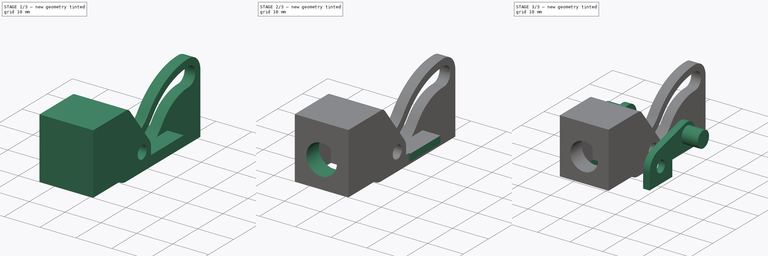
[diagram: build sequence overview — one tinted view per stage of 3, left to right]
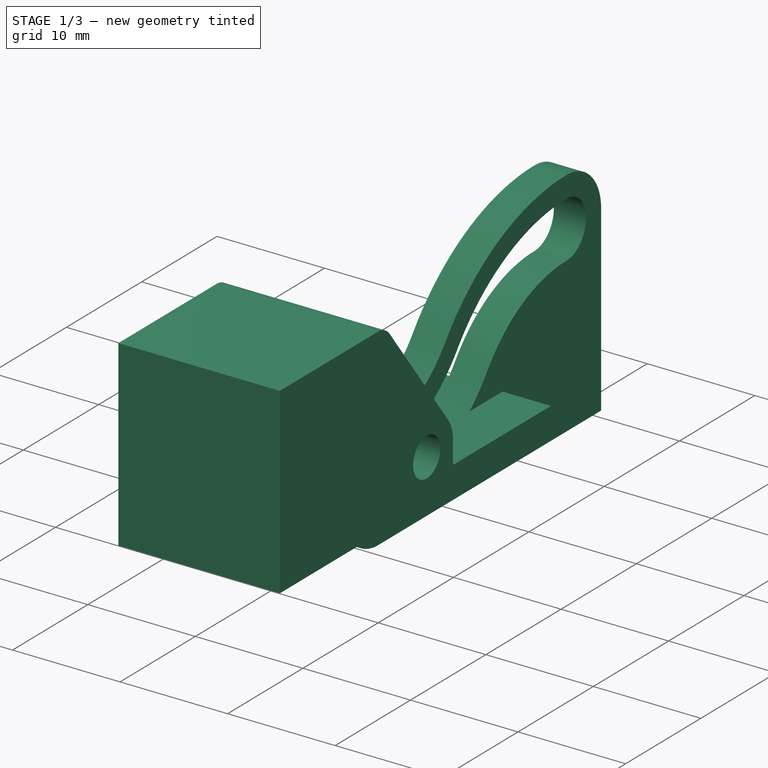
[diagram: stage 1 of 3 — iso view after this stage's code; geometry added in this stage tinted green]
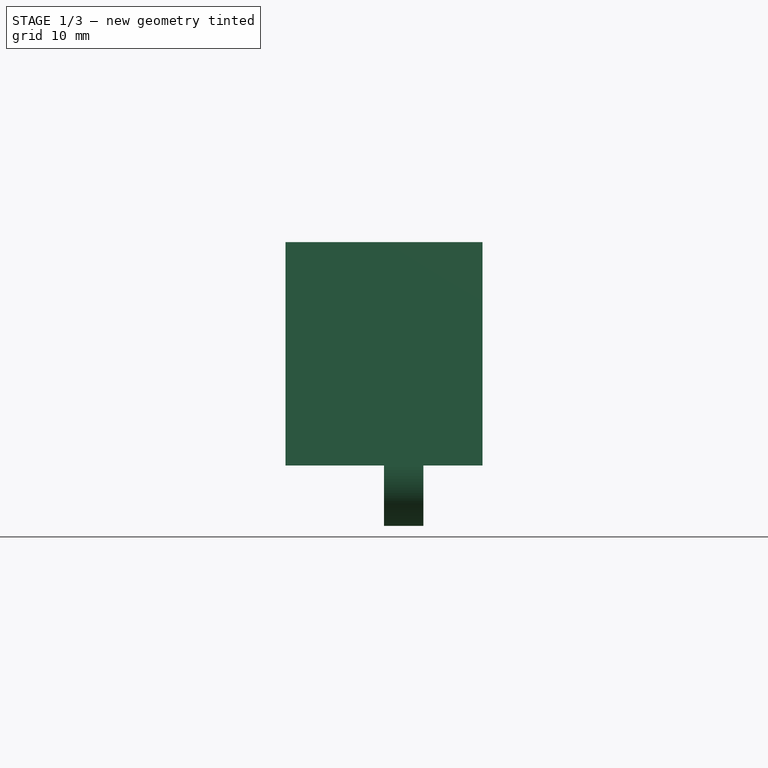
[diagram: stage 1 of 3 — front view after this stage's code; geometry added in this stage tinted green]
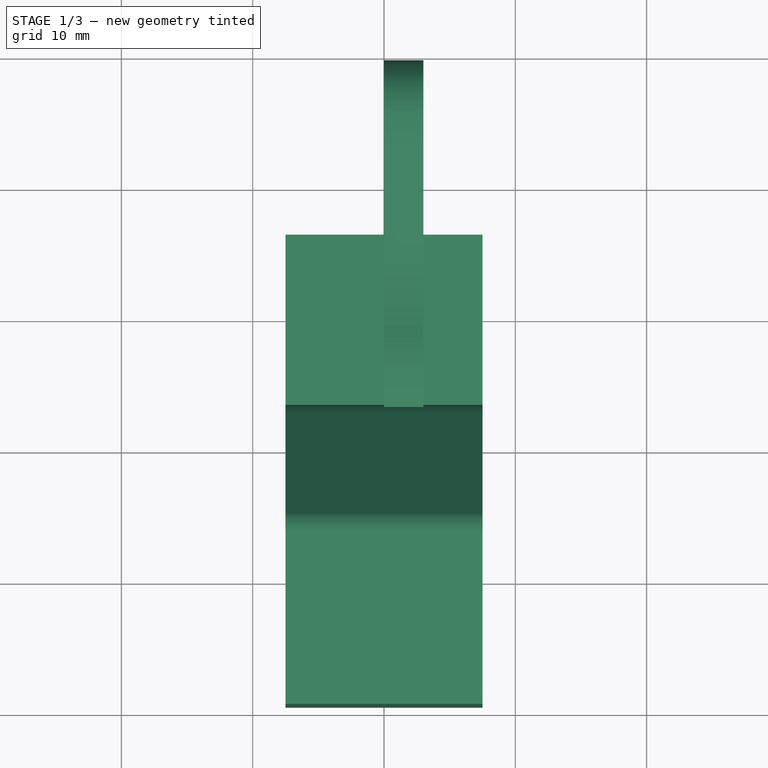
[diagram: stage 1 of 3 — top view after this stage's code; geometry added in this stage tinted green]
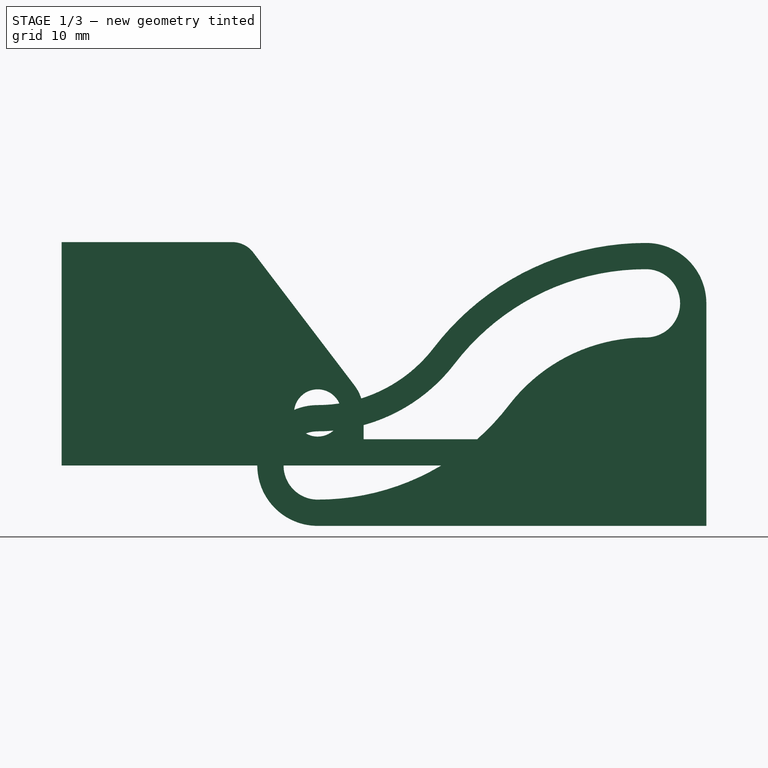
[diagram: stage 1 of 3 — right view after this stage's code; geometry added in this stage tinted green]
FCSTD DOCUMENT  (FreeCAD 0.19R24366 (Git))
Label: Обечайка_Автомат
License: All rights reserved
LicenseURL: http://en.wikipedia.org/wiki/All_rights_reserved
objects: Sketcher::SketchObject×7, PartDesign::Pad×5, PartDesign::Body×3, PartDesign::Pocket×2, PartDesign::Mirrored×1
note: 25 computed .brp shape members not serialized (recipe doc carries the construction recipe); baked Part::Feature solids carry a one-line shape summary decoded from their .brp

FEATURE [Sketcher::SketchObject] Sketch
  FullyConstrained = true
  MapMode = 5
  Placement = pos=(0,0,0) rot=(0.57735,0.57735,0.57735;2.0944rad)
  Support = -> [YZ_Plane]
  sketch-geometry (24):
    g0: LineSegment StartX=-3.5 StartY=0 StartZ=0 EndX=16.5 EndY=0 EndZ=0
    g1: LineSegment StartX=16.5 StartY=0 StartZ=0 EndX=16.5 EndY=2 EndZ=0
    g2: LineSegment StartX=16.5 StartY=2 StartZ=0 EndX=3.5 EndY=2 EndZ=0
    g3: LineSegment StartX=3.5 StartY=2 StartZ=0 EndX=3.5 EndY=4 EndZ=0
    g4: Circle CenterX=0 CenterY=4 CenterZ=0 NormalX=0 NormalY=0 NormalZ=1 AngleXU=0 Radius=1.8
    g5: LineSegment StartX=0 StartY=4 StartZ=0 EndX=0 EndY=7.5 EndZ=0
    g6: LineSegment StartX=0 StartY=4 StartZ=0 EndX=3.5 EndY=4 EndZ=0
    g7: LineSegment StartX=-6.5 StartY=0 StartZ=0 EndX=-14.5 EndY=0 EndZ=0
    g8: LineSegment StartX=-14.5 StartY=0 StartZ=0 EndX=-14.5 EndY=15.0111 EndZ=0
    g9: LineSegment StartX=-14.5 StartY=15.0111 StartZ=0 EndX=-6.5 EndY=15.0111 EndZ=0
    g10: LineSegment StartX=-6.5 StartY=15.0111 StartZ=0 EndX=-6.5 EndY=0 EndZ=0
    g11: ArcOfCircle CenterX=0 CenterY=4 CenterZ=0 NormalX=0 NormalY=0 NormalZ=1 AngleXU=0 Radius=3.5 StartAngle=6.28318 EndAngle=6.93403
    g12: LineSegment StartX=-3.5 StartY=0 StartZ=0 EndX=-19.5 EndY=0 EndZ=0
    g13: LineSegment StartX=-19.5 StartY=0 StartZ=0 EndX=-19.5 EndY=17.0111 EndZ=0
    g14: LineSegment StartX=-19.5 StartY=17.0111 StartZ=0 EndX=-6.49998 EndY=17.0111 EndZ=0
    g15: ArcOfCircle CenterX=-6.5 CenterY=15.0111 CenterZ=0 NormalX=0 NormalY=0 NormalZ=1 AngleXU=0 Radius=2 StartAngle=0.650845 EndAngle=1.57079
    g16: LineSegment StartX=2.78451 StartY=6.1205 StartZ=0 EndX=-4.90886 EndY=16.2228 EndZ=0
    g17: LineSegment StartX=0 StartY=-4e-16 StartZ=0 EndX=6.5 EndY=3.75278 EndZ=0
    g18: LineSegment StartX=6.5 StartY=3.75278 StartZ=0 EndX=6.5 EndY=11.2583 EndZ=0
    g19: LineSegment StartX=6.5 StartY=11.2583 StartZ=0 EndX=9e-16 EndY=15.0111 EndZ=0
    g20: LineSegment StartX=6e-16 StartY=15.0111 StartZ=0 EndX=-6.5 EndY=11.2583 EndZ=0
    g21: LineSegment StartX=-6.5 StartY=11.2583 StartZ=0 EndX=-6.5 EndY=3.75278 EndZ=0
    g22: LineSegment StartX=-6.5 StartY=3.75278 StartZ=0 EndX=0 EndY=-4e-16 EndZ=0
    g23: Circle CenterX=0 CenterY=7.50555 CenterZ=0 NormalX=0 NormalY=0 NormalZ=1 AngleXU=0 Radius=7.50555
  constraints (67):
    c: PointOnObject(g0,g-1)
    c: PointOnObject(g0,g-1)
    c: Coincident(g0,g1)
    c: Vertical(g1)
    c: Coincident(g1,g2)
    c: Horizontal(g2)
    c: Coincident(g2,g3)
    c: Vertical(g3)
    c: PointOnObject(g4,g-2)
    c: DistanceY(g4) = 4
    c: Diameter(g4) = 3.6
    c: Distance(g1) = 2
    c: Distance(g0) = 20
    c: Coincident(g5,g4)
    c: Vertical(g5)
    c: Coincident(g6,g4)
    c: PointOnObject(g6,g3)
    c: Horizontal(g6)
    c: Equal(g6,g5)
    c: Coincident(g7,g8)
    c: Coincident(g8,g9)
    c: Coincident(g9,g10)
    c: Coincident(g10,g7)
    c: Horizontal(g7)
    c: Horizontal(g9)
    c: Vertical(g8)
    c: Vertical(g10)
    c: PointOnObject(g7,g-1)
    c: Coincident(g11,g4)
    c: Coincident(g11,g3)
    c: DistanceX(g0) = -3.5  'C31'
    c: Coincident(g12,g0)
    c: PointOnObject(g12,g-1)
    c: Coincident(g13,g12)
    c: Vertical(g13)
    c: Coincident(g14,g13)
    c: Horizontal(g14)
    c: Coincident(g15,g9)
    c: Coincident(g15,g14)
    c: Coincident(g16,g11)
    c: Coincident(g16,g15)
    c: Tangent(g11,g16)
    c: Tangent(g11,g3)
    c: Tangent(g16,g15)
    c: Tangent(g15,g14)
    c: Diameter(g11) = 7
    c: Distance(g7,g12) = 5
    c: Distance(g9) = 8
    c: Distance(g4,g10) = 6.5  'bolt_distance'
    c: Diameter(g15) = 4
    c: Coincident(g17,g18)
    c: Coincident(g18,g19)
    c: Coincident(g19,g20)
    c: Coincident(g20,g21)
    c: Coincident(g21,g22)
    c: Coincident(g22,g17)
    c: Equal(g17, g18-g22) x5
    c: PointOnObject(g17,g23)
    c: PointOnObject(g18,g23)
    c: PointOnObject(g19,g23)
    c: PointOnObject(g20,g23)
    c: PointOnObject(g21,g23)
    c: PointOnObject(g22,g23)
    c: PointOnObject(g23,g-2)
    c: Coincident(g22,g-1)
    c: DistanceX(g21,g17) = 13
    c: Horizontal(g15,g19)
FEATURE [PartDesign::Pad] Pad
  Direction = (1,1,1)
  Length = 15.01
  Length2 = 100
  Midplane = true
  Placement = pos=(0,0,0) rot=(0.57735,0.57735,0.57735;2.0944rad)
  Profile = -> Sketch
  Type = 0
FEATURE [PartDesign::Body] Body001
  Group = -> [Sketch001,Sketch002,Pad001,Pad002,Sketch003,Pad003,Mirrored]
  Origin = -> Origin001
  Placement = pos=(0,0,4) rot=(0,0,1;0rad)
  Tip = -> Mirrored
FEATURE [Sketcher::SketchObject] Sketch004
  AttachmentOffset = pos=(0,0,6.5) rot=(0,0,1;0rad)
  FullyConstrained = true
  MapMode = 5
  Placement = pos=(0,-6.5,1.4e-15) rot=(1,0,0;1.5708rad)
  Support = -> [XZ_Plane]
  expr: .AttachmentOffset.Base.z = <<Sketch>>.Constraints.bolt_distance
  sketch-geometry (10):
    g0: LineSegment StartX=0 StartY=0 StartZ=0 EndX=6.5 EndY=3.75278 EndZ=0
    g1: LineSegment StartX=6.5 StartY=3.75278 StartZ=0 EndX=6.5 EndY=11.2583 EndZ=0
    g2: LineSegment StartX=6.5 StartY=11.2583 StartZ=0 EndX=4.4e-15 EndY=15.0111 EndZ=0
    g3: LineSegment StartX=4.4e-15 StartY=15.0111 StartZ=0 EndX=-6.5 EndY=11.2583 EndZ=0
    g4: LineSegment StartX=-6.5 StartY=11.2583 StartZ=0 EndX=-6.5 EndY=3.75278 EndZ=0
    g5: LineSegment StartX=-6.5 StartY=3.75278 StartZ=0 EndX=0 EndY=0 EndZ=0
    g6: Circle CenterX=0 CenterY=7.50555 CenterZ=0 NormalX=0 NormalY=0 NormalZ=1 AngleXU=0 Radius=7.50555
    g7: LineSegment StartX=-6.5 StartY=3.75278 StartZ=0 EndX=-6.5 EndY=0 EndZ=0
    g8: LineSegment StartX=-6.5 StartY=0 StartZ=0 EndX=6.5 EndY=0 EndZ=0
    g9: LineSegment StartX=6.5 StartY=0 StartZ=0 EndX=6.5 EndY=3.75278 EndZ=0
  constraints (24):
    c: Coincident(g0,g1)
    c: Coincident(g1,g2)
    c: Coincident(g2,g3)
    c: Coincident(g3,g4)
    c: Coincident(g4,g5)
    c: Coincident(g5,g0)
    c: Equal(g0, g1-g5) x5
    c: PointOnObject(g0,g6)
    c: PointOnObject(g1,g6)
    c: PointOnObject(g2,g6)
    c: PointOnObject(g3,g6)
    c: PointOnObject(g4,g6)
    c: PointOnObject(g5,g6)
    c: PointOnObject(g6,g-2)
    c: Coincident(g5,g-1)
    c: DistanceX(g4,g0) = 13
    c: Coincident(g4,g7)
    c: PointOnObject(g7,g-1)
    c: Vertical(g7)
    c: Coincident(g7,g8)
    c: PointOnObject(g8,g-1)
    c: Coincident(g8,g9)
    c: Coincident(g9,g1)
    c: Vertical(g9)
FEATURE [PartDesign::Pocket] Pocket
  BaseFeature = -> Pad
  Length = 8
  Length2 = 100
  Placement = pos=(0,0,0) rot=(0.57735,0.57735,0.57735;2.0944rad)
  Profile = -> Sketch004
  Reversed = true
  Type = 0
FEATURE [PartDesign::Body] Body
  Group = -> [Sketch,Pad,Sketch004,Pocket,Sketch005,Pocket001]
  Origin = -> Origin
  Tip = -> Pocket001
FEATURE [Sketcher::SketchObject] Sketch006
  FullyConstrained = false
  MapMode = 5
  Placement = pos=(0,0,0) rot=(0.57735,0.57735,0.57735;2.0944rad)
  Support = -> [YZ_Plane002]
  expr: Constraints[15] = Sketch001.Constraints.rotation_distance
  sketch-geometry (17):
    g0: ArcOfCircle CenterX=0 CenterY=0 CenterZ=0 NormalX=0 NormalY=0 NormalZ=1 AngleXU=0 Radius=2.6 StartAngle=1.5708 EndAngle=4.71239
    g1: ArcOfCircle CenterX=-3.74188e-07 CenterY=15.74 CenterZ=0 NormalX=0 NormalY=0 NormalZ=1 AngleXU=0 Radius=13.14 StartAngle=4.71239 EndAngle=5.63
    g2: ArcOfCircle CenterX=25 CenterY=-3.39094 CenterZ=0 NormalX=0 NormalY=0 NormalZ=1 AngleXU=0 Radius=18.34 StartAngle=1.5708 EndAngle=2.48841
    g3: ArcOfCircle CenterX=25 CenterY=12.3491 CenterZ=0 NormalX=0 NormalY=0 NormalZ=1 AngleXU=0 Radius=2.6 StartAngle=4.71239 EndAngle=7.85398
    g4: ArcOfCircle CenterX=25 CenterY=-3.39094 CenterZ=0 NormalX=0 NormalY=0 NormalZ=1 AngleXU=0 Radius=13.14 StartAngle=1.5708 EndAngle=2.48841
    g5: ArcOfCircle CenterX=-3.74188e-07 CenterY=15.74 CenterZ=0 NormalX=0 NormalY=0 NormalZ=1 AngleXU=0 Radius=18.34 StartAngle=4.71239 EndAngle=5.63
    g6: LineSegment StartX=25 StartY=9.74909 StartZ=0 EndX=31.0091 EndY=9.74909 EndZ=0
    g7: ArcOfCircle CenterX=0 CenterY=0 CenterZ=0 NormalX=0 NormalY=0 NormalZ=1 AngleXU=0 Radius=4.6 StartAngle=1.5708 EndAngle=4.71239
    g8: ArcOfCircle CenterX=-3.74188e-07 CenterY=15.74 CenterZ=0 NormalX=0 NormalY=0 NormalZ=1 AngleXU=0 Radius=11.14 StartAngle=4.71239 EndAngle=5.63
    g9: ArcOfCircle CenterX=-3.74188e-07 CenterY=15.74 CenterZ=0 NormalX=0 NormalY=0 NormalZ=1 AngleXU=0 Radius=20.34 StartAngle=4.71239 EndAngle=5.63
    g10: ArcOfCircle CenterX=25 CenterY=-3.39094 CenterZ=0 NormalX=0 NormalY=0 NormalZ=1 AngleXU=0 Radius=11.14 StartAngle=1.5708 EndAngle=2.48841
    g11: ArcOfCircle CenterX=25 CenterY=12.3491 CenterZ=0 NormalX=0 NormalY=0 NormalZ=1 AngleXU=0 Radius=4.6 StartAngle=4.71239 EndAngle=7.85398
    g12: ArcOfCircle CenterX=25 CenterY=-3.39094 CenterZ=0 NormalX=0 NormalY=0 NormalZ=1 AngleXU=0 Radius=20.34 StartAngle=1.5708 EndAngle=2.48841
    g13: LineSegment StartX=-1.04197e-08 StartY=-2.6 StartZ=0 EndX=-5.91042 EndY=-2.6 EndZ=0
    g14: LineSegment StartX=2.37002e-07 StartY=-4.6 StartZ=0 EndX=29.6 EndY=-4.6 EndZ=0
    g15: LineSegment StartX=29.6 StartY=-4.6 StartZ=0 EndX=29.6 EndY=12.3491 EndZ=0
    g16: ArcOfCircle CenterX=25 CenterY=12.3491 CenterZ=0 NormalX=0 NormalY=0 NormalZ=1 AngleXU=0 Radius=4.6 StartAngle=2.30467e-06 EndAngle=1.5708
  constraints (51):
    c: Coincident(g0,g-1)
    c: Coincident(g1,g0)
    c: Coincident(g2,g1)
    c: Coincident(g3,g2)
    c: Coincident(g4,g2)
    c: Coincident(g4,g3)
    c: Coincident(g5,g1)
    c: Coincident(g5,g4)
    c: Coincident(g5,g0)
    c: Tangent(g2,g3)
    c: Tangent(g3,g4)
    c: Tangent(g5,g0)
    c: Tangent(g0,g1)
    c: Tangent(g1,g2)
    c: Tangent(g5,g4)
    c: DistanceY(g3) = 12.3491
    c: Coincident(g6,g3)
    c: Horizontal(g6)
    c: Tangent(g6,g3)
    c: Coincident(g7,g0)
    c: Coincident(g8,g1)
    c: Coincident(g8,g7)
    c: Coincident(g9,g1)
    c: Coincident(g9,g7)
    c: Coincident(g10,g2)
    c: Coincident(g10,g9)
    c: Coincident(g11,g3)
    c: Coincident(g11,g10)
    c: Coincident(g12,g2)
    c: Coincident(g12,g11)
    c: Coincident(g12,g8)
    c: Tangent(g9,g7)
    c: Tangent(g8,g7)
    c: Tangent(g10,g11)
    c: Tangent(g11,g12)
    c: Tangent(g12,g8)
    c: DistanceX(g3) = 25
    c: Diameter(g3) = 5.2
    c: Diameter(g11) = 9.2
    c: Equal(g4,g1)
    c: Coincident(g13,g0)
    c: Horizontal(g13)
    c: Tangent(g13,g0)
    c: Coincident(g14,g7)
    c: Horizontal(g14)
    c: Coincident(g15,g14)
    c: Vertical(g15)
    c: Coincident(g16,g3)
    c: Coincident(g16,g12)
    c: Coincident(g16,g15)
    c: Tangent(g15,g16)
FEATURE [PartDesign::Pad] Pad004
  Direction = (1,1,1)
  Length = 3
  Length2 = 100
  Placement = pos=(0,0,0) rot=(0.57735,0.57735,0.57735;2.0944rad)
  Profile = -> Sketch006
  Type = 0
FEATURE [PartDesign::Body] Body002
  Group = -> [Sketch006,Pad004]
  Origin = -> Origin002
  Tip = -> Pad004
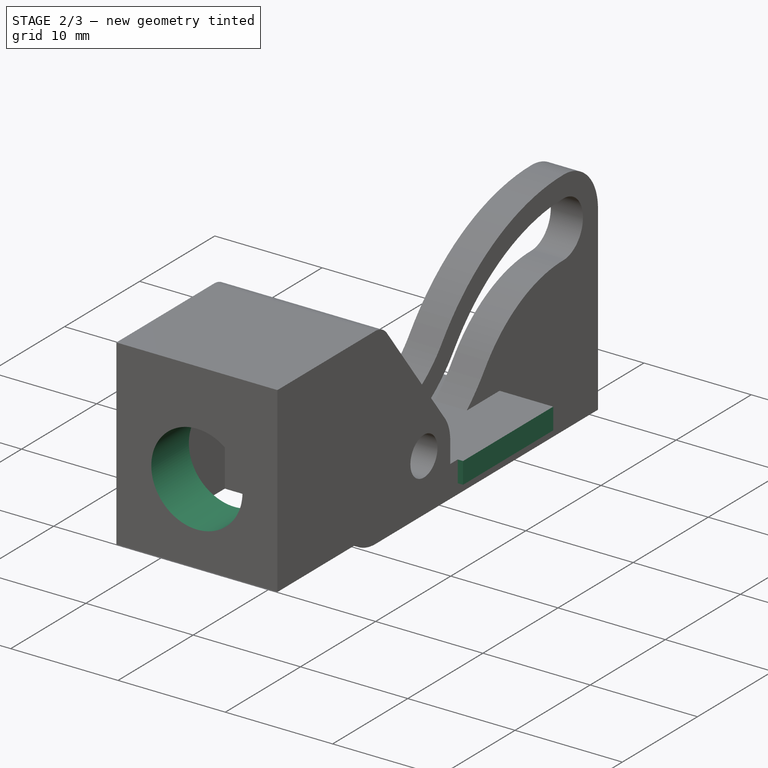
[diagram: stage 2 of 3 — iso view after this stage's code; geometry added in this stage tinted green]
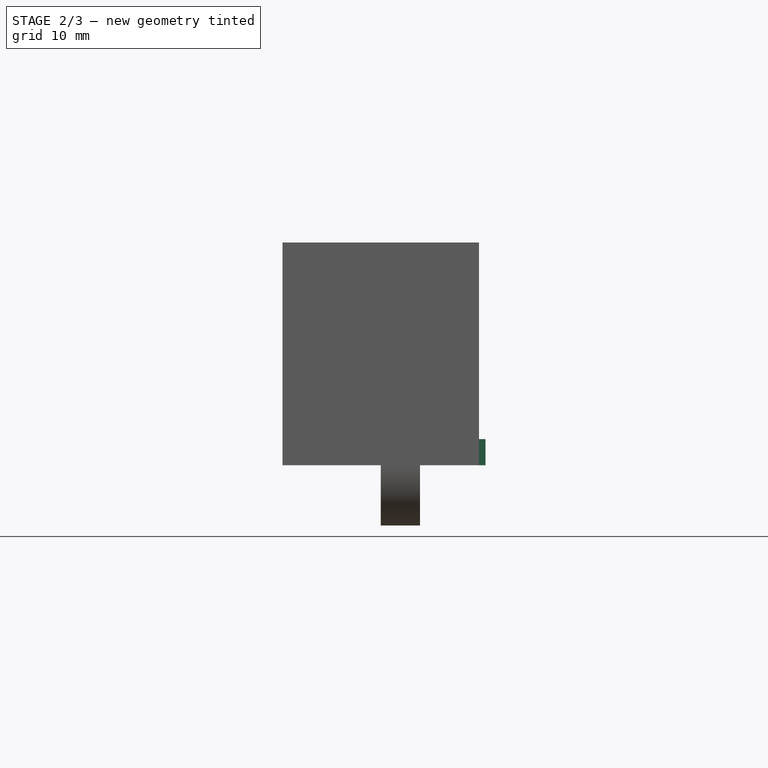
[diagram: stage 2 of 3 — front view after this stage's code; geometry added in this stage tinted green]
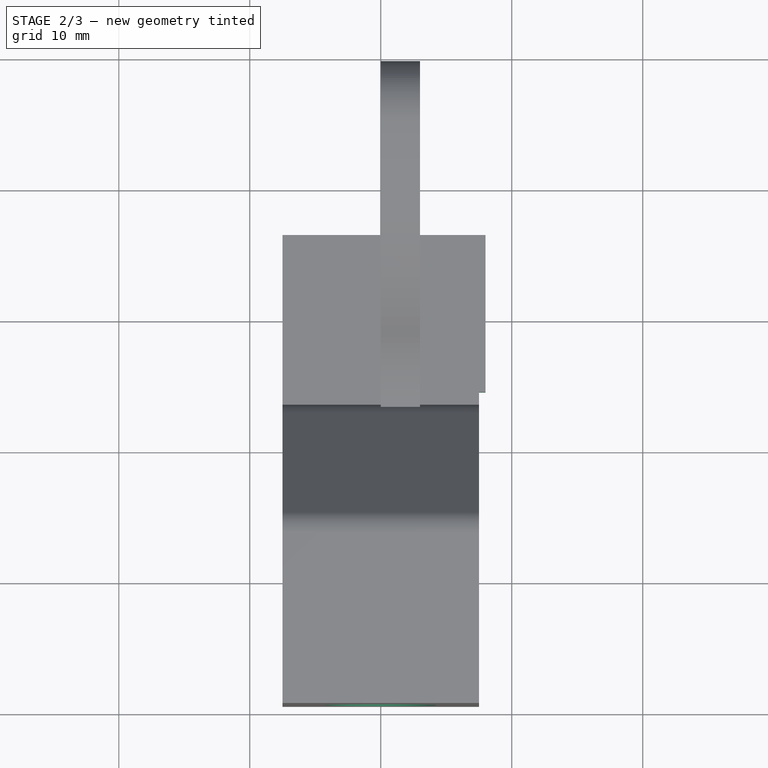
[diagram: stage 2 of 3 — top view after this stage's code; geometry added in this stage tinted green]
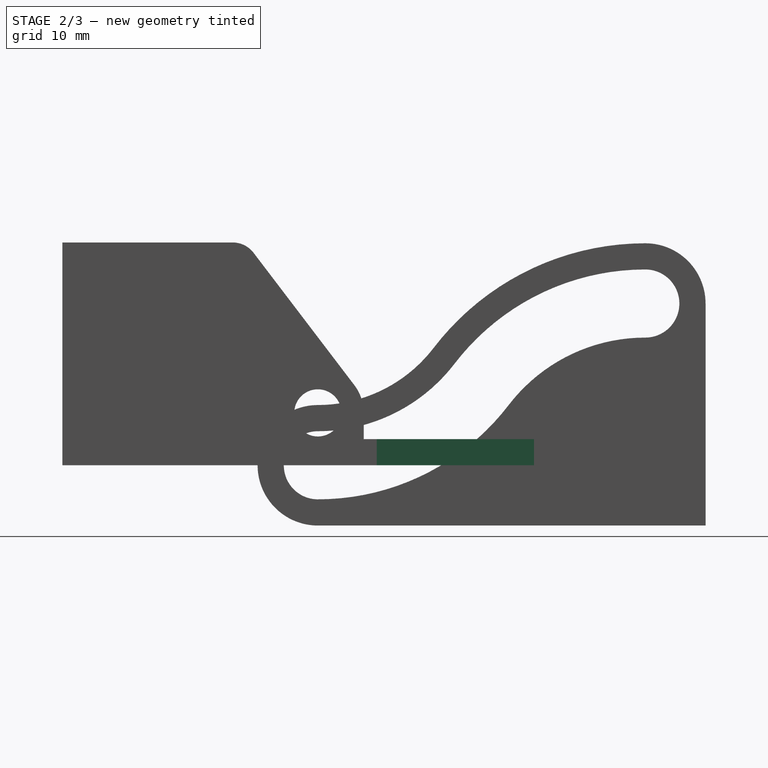
[diagram: stage 2 of 3 — right view after this stage's code; geometry added in this stage tinted green]
FEATURE [Sketcher::SketchObject] Sketch001
  AttachmentOffset = pos=(0,0,8) rot=(0,0,1;0rad)
  FullyConstrained = true
  MapMode = 5
  Placement = pos=(8,-1.8e-15,1.8e-15) rot=(0.57735,0.57735,0.57735;2.0944rad)
  Support = -> [YZ_Plane001]
  sketch-geometry (14):
    g0: Circle CenterX=0 CenterY=0 CenterZ=0 NormalX=0 NormalY=0 NormalZ=1 AngleXU=0 Radius=1.8
    g1: LineSegment StartX=-5 StartY=-4.8 StartZ=0 EndX=5 EndY=-4.8 EndZ=0
    g2: LineSegment StartX=5 StartY=-4.8 StartZ=0 EndX=5 EndY=0 EndZ=0
    g3: LineSegment StartX=5 StartY=0 StartZ=0 EndX=15 EndY=0 EndZ=0
    g4: LineSegment StartX=15 StartY=0 StartZ=0 EndX=15 EndY=2 EndZ=0
    g5: LineSegment StartX=-5 StartY=-4.8 StartZ=0 EndX=-5 EndY=2.87421e-08 EndZ=0
    g6: GeomPoint X=0 Y=10 Z=0
    g7: LineSegment StartX=0 StartY=0 StartZ=0 EndX=-5 EndY=0 EndZ=0
    g8: LineSegment StartX=0 StartY=0 StartZ=0 EndX=5 EndY=0 EndZ=0
    g9: ArcOfCircle CenterX=0 CenterY=0 CenterZ=0 NormalX=0 NormalY=0 NormalZ=1 AngleXU=0 Radius=5 StartAngle=1.82202 EndAngle=3.14159
    g10: Circle CenterX=11.5 CenterY=4.5 CenterZ=0 NormalX=0 NormalY=0 NormalZ=1 AngleXU=0 Radius=2.5
    g11: ArcOfCircle CenterX=11.5 CenterY=4.5 CenterZ=0 NormalX=0 NormalY=0 NormalZ=1 AngleXU=0 Radius=3.5 StartAngle=6.28318 EndAngle=8.1052
    g12: LineSegment StartX=15 StartY=2 StartZ=0 EndX=15 EndY=4.5 EndZ=0
    g13: LineSegment StartX=10.6299 StartY=7.89013 StartZ=0 EndX=-1.24293 EndY=4.84305 EndZ=0
  constraints (40):
    c: Coincident(g0,g-1)
    c: Horizontal(g1)
    c: Coincident(g2,g1)
    c: PointOnObject(g2,g-1)
    c: Vertical(g2)
    c: Coincident(g3,g2)
    c: PointOnObject(g3,g-1)
    c: Coincident(g4,g3)
    c: Vertical(g4)
    c: Coincident(g5,g1)
    c: Vertical(g5)
    c: PointOnObject(g6,g-2)
    c: Diameter(g0) = 3.6
    c: Coincident(g7,g0)
    c: PointOnObject(g7,g-1)
    c: Coincident(g8,g0)
    c: Coincident(g8,g2)
    c: Equal(g7,g8)
    c: PointOnObject(g7,g5)
    c: DistanceY(g1) = -4.8
    c: Distance(g4) = 2
    c: Distance(g0,g6) = 10
    c: Distance(g7,g2) = 10
    c: Coincident(g9,g0)
    c: Coincident(g9,g5)
    c: Tangent(g9,g5)
    c: Distance(g3) = 10
    c: Diameter(g10) = 5
    c: DistanceY(g10) = 4.5
    c: Coincident(g11,g10)
    c: Coincident(g12,g4)
    c: Coincident(g12,g11)
    c: Vertical(g12)
    c: Coincident(g13,g11)
    c: Coincident(g13,g9)
    c: Tangent(g11,g13)
    c: Tangent(g13,g9)
    c: Distance(g11,g11) = 3.5
    c: Tangent(g12,g11)
    c: Distance(g0,g11) = 12.3491  'rotation_distance'
FEATURE [Sketcher::SketchObject] Sketch002
  FullyConstrained = false
  MapMode = 5
  Placement = pos=(0,0,0) rot=(0.57735,0.57735,0.57735;2.0944rad)
  Support = -> [YZ_Plane001]
  expr: Constraints[67] = Sketch001.Constraints[20]
  expr: Constraints[66] = Sketch001.Constraints[19]
  expr: Constraints[28] = Sketch001.Constraints[15]
  expr: Constraints[37] = Sketch001.Constraints[20]
  expr: Constraints[58] = Sketch001.Constraints[15]
  expr: Constraints[59] = Sketch001.Constraints[12]
  expr: Constraints[36] = Sketch001.Constraints[19]
  expr: Constraints[29] = Sketch001.Constraints[12]
  sketch-geometry (26):
    g0: LineSegment StartX=4.5 StartY=0 StartZ=0 EndX=16.5 EndY=0 EndZ=0
    g1: LineSegment StartX=16.5 StartY=0 StartZ=0 EndX=16.5 EndY=2 EndZ=0
    g2: LineSegment StartX=16.5 StartY=2 StartZ=0 EndX=4.5 EndY=2 EndZ=0
    g3: LineSegment StartX=4.5 StartY=2 StartZ=0 EndX=4.5 EndY=0 EndZ=0
    g4: Circle CenterX=1.78467e-11 CenterY=0 CenterZ=0 NormalX=0 NormalY=0 NormalZ=1 AngleXU=0 Radius=1.8
    g5: LineSegment StartX=-9.15116e-11 StartY=-4.8 StartZ=0 EndX=1.93334e-10 EndY=-4.8 EndZ=0
    g6: LineSegment StartX=1.93334e-10 StartY=-4.8 StartZ=0 EndX=1.93334e-10 EndY=0 EndZ=0
    g7: LineSegment StartX=1.93334e-10 StartY=0 StartZ=0 EndX=11.2546 EndY=-1.62907e-11 EndZ=0
    g8: LineSegment StartX=11.2546 StartY=-1.62907e-11 StartZ=0 EndX=11.2546 EndY=2 EndZ=0
    g9: ArcOfCircle CenterX=11.2546 CenterY=27.3045 CenterZ=0 NormalX=0 NormalY=0 NormalZ=1 AngleXU=0 Radius=25.3045 StartAngle=4.25148 EndAngle=4.71239
    g10: ArcOfCircle CenterX=-3.00482e-11 CenterY=4.6406 CenterZ=0 NormalX=0 NormalY=0 NormalZ=1 AngleXU=0 Radius=6.37743e-11 StartAngle=0.63828 EndAngle=3.41162
    g11: LineSegment StartX=-9.15116e-11 StartY=-4.8 StartZ=0 EndX=-9.15116e-11 EndY=4.6406 EndZ=0
    g12: GeomPoint X=-1.437e-13 Y=4.6406 Z=0
    g13: LineSegment StartX=1.78467e-11 StartY=0 StartZ=0 EndX=-1.48906e-10 EndY=0 EndZ=0
    g14: LineSegment StartX=1.78467e-11 StartY=0 StartZ=0 EndX=1.93334e-10 EndY=0 EndZ=0
    g15: Circle CenterX=2.13204e-11 CenterY=0 CenterZ=0 NormalX=0 NormalY=0 NormalZ=1 AngleXU=0 Radius=1.8
    g16: LineSegment StartX=-6.17256e-11 StartY=-4.8 StartZ=0 EndX=1.51256e-10 EndY=-4.8 EndZ=0
    g17: LineSegment StartX=1.51256e-10 StartY=-4.8 StartZ=0 EndX=1.51256e-10 EndY=0 EndZ=0
    g18: LineSegment StartX=1.51256e-10 StartY=0 StartZ=0 EndX=11.2555 EndY=-1.81945e-11 EndZ=0
    g19: LineSegment StartX=11.2555 StartY=-1.81945e-11 StartZ=0 EndX=11.2555 EndY=2 EndZ=0
    g20: ArcOfCircle CenterX=11.2555 CenterY=27.2877 CenterZ=0 NormalX=0 NormalY=0 NormalZ=1 AngleXU=0 Radius=25.2877 StartAngle=4.25111 EndAngle=4.71239
    g21: ArcOfCircle CenterX=-1.4724e-11 CenterY=4.643 CenterZ=0 NormalX=0 NormalY=0 NormalZ=1 AngleXU=0 Radius=5.41908e-11 StartAngle=0.611928 EndAngle=3.66256
    g22: LineSegment StartX=-6.17256e-11 StartY=-4.8 StartZ=0 EndX=-6.17256e-11 EndY=4.643 EndZ=0
    g23: GeomPoint X=-2.285e-13 Y=4.643 Z=0
    g24: LineSegment StartX=2.13204e-11 StartY=0 StartZ=0 EndX=-9.82892e-11 EndY=0 EndZ=0
    g25: LineSegment StartX=2.13204e-11 StartY=0 StartZ=0 EndX=1.51256e-10 EndY=0 EndZ=0
  constraints (71):
    c: Coincident(g0,g1)
    c: Coincident(g1,g2)
    c: Coincident(g2,g3)
    c: Coincident(g3,g0)
    c: Horizontal(g0)
    c: Horizontal(g2)
    c: Vertical(g1)
    c: Vertical(g3)
    c: PointOnObject(g0,g-1)
    c: Distance(g0) = 12
    c: Coincident(g4,g-1)
    c: Horizontal(g5)
    c: Coincident(g6,g5)
    c: PointOnObject(g6,g-1)
    c: Vertical(g6)
    c: Coincident(g7,g6)
    c: PointOnObject(g7,g-1)
    c: Coincident(g8,g7)
    c: Vertical(g8)
    c: Coincident(g9,g8)
    c: PointOnObject(g10,g-2)
    c: Coincident(g10,g9)
    c: Coincident(g11,g5)
    c: Coincident(g11,g10)
    c: Vertical(g11)
    c: Tangent(g10,g11)
    c: PointOnObject(g12,g10)
    c: PointOnObject(g12,g-2)
    c: Diameter(g10) = 0
    c: Diameter(g4) = 3.6
    c: Coincident(g13,g4)
    c: PointOnObject(g13,g-1)
    c: Coincident(g14,g4)
    c: Coincident(g14,g6)
    c: Equal(g13,g14)
    c: PointOnObject(g13,g11)
    c: DistanceY(g5) = -4.8
    c: Distance(g8) = 2
    c: Perpendicular(g9,g8)
    c: Tangent(g9,g10)
    c: Coincident(g15,g-1)
    c: Horizontal(g16)
    c: Coincident(g17,g16)
    c: PointOnObject(g17,g-1)
    c: Vertical(g17)
    c: Coincident(g18,g17)
    c: PointOnObject(g18,g-1)
    c: Coincident(g19,g18)
    c: Vertical(g19)
    c: Coincident(g20,g19)
    c: PointOnObject(g21,g-2)
    c: Coincident(g21,g20)
    c: Coincident(g22,g16)
    c: Coincident(g22,g21)
    c: Vertical(g22)
    c: Tangent(g21,g22)
    c: PointOnObject(g23,g21)
    c: PointOnObject(g23,g-2)
    c: Diameter(g21) = 0
    c: Diameter(g15) = 3.6
    c: Coincident(g24,g15)
    c: PointOnObject(g24,g-1)
    c: Coincident(g25,g15)
    c: Coincident(g25,g17)
    c: Equal(g24,g25)
    c: PointOnObject(g24,g22)
    c: DistanceY(g16) = -4.8
    c: Distance(g19) = 2
    c: Perpendicular(g20,g19)
    c: Distance(g3) = 2
    c: DistanceX(g0) = 16.5
FEATURE [PartDesign::Pad] Pad001
  Direction = (1,1,1)
  Length = 8
  Length2 = 100
  Placement = pos=(0,0,0) rot=(0.57735,0.57735,0.57735;2.0944rad)
  Profile = -> Sketch002
  Type = 0
FEATURE [Sketcher::SketchObject] Sketch005
  AttachmentOffset = pos=(0,0,6.5) rot=(0,0,1;0rad)
  FullyConstrained = true
  MapMode = 5
  Placement = pos=(0,-6.5,1.4e-15) rot=(1,0,0;1.5708rad)
  Support = -> [XZ_Plane]
  expr: .AttachmentOffset.Base.z = <<Sketch>>.Constraints.bolt_distance
  expr: Constraints[19] = Sketch004.Constraints[19]
  sketch-geometry (11):
    g0: LineSegment StartX=0 StartY=0 StartZ=0 EndX=6.5 EndY=3.75278 EndZ=0
    g1: LineSegment StartX=6.5 StartY=3.75278 StartZ=0 EndX=6.5 EndY=11.2583 EndZ=0
    g2: LineSegment StartX=6.5 StartY=11.2583 StartZ=0 EndX=4.4e-15 EndY=15.0111 EndZ=0
    g3: LineSegment StartX=4.4e-15 StartY=15.0111 StartZ=0 EndX=-6.5 EndY=11.2583 EndZ=0
    g4: LineSegment StartX=-6.5 StartY=11.2583 StartZ=0 EndX=-6.5 EndY=3.75278 EndZ=0
    g5: LineSegment StartX=-6.5 StartY=3.75278 StartZ=0 EndX=0 EndY=0 EndZ=0
    g6: Circle CenterX=0 CenterY=7.50555 CenterZ=0 NormalX=0 NormalY=0 NormalZ=1 AngleXU=0 Radius=7.50555
    g7: LineSegment StartX=-6.5 StartY=3.75278 StartZ=0 EndX=-6.5 EndY=0 EndZ=0
    g8: LineSegment StartX=-6.5 StartY=0 StartZ=0 EndX=6.5 EndY=0 EndZ=0
    g9: LineSegment StartX=6.5 StartY=0 StartZ=0 EndX=6.5 EndY=3.75278 EndZ=0
    g10: Circle CenterX=0 CenterY=7.50555 CenterZ=0 NormalX=0 NormalY=0 NormalZ=1 AngleXU=0 Radius=4.25
  constraints (26):
    c: Coincident(g0,g1)
    c: Coincident(g1,g2)
    c: Coincident(g2,g3)
    c: Coincident(g3,g4)
    c: Coincident(g4,g5)
    c: Coincident(g5,g0)
    c: Equal(g0, g1-g5) x5
    c: PointOnObject(g0,g6)
    c: PointOnObject(g1,g6)
    c: PointOnObject(g2,g6)
    c: PointOnObject(g3,g6)
    c: PointOnObject(g4,g6)
    c: PointOnObject(g5,g6)
    c: PointOnObject(g6,g-2)
    c: Coincident(g5,g-1)
    c: DistanceX(g4,g0) = 13
    c: Coincident(g4,g7)
    c: PointOnObject(g7,g-1)
    c: Vertical(g7)
    c: Coincident(g7,g8)
    c: PointOnObject(g8,g-1)
    c: Coincident(g8,g9)
    c: Coincident(g9,g1)
    c: Vertical(g9)
    c: Coincident(g10,g6)
    c: Diameter(g10) = 8.5
FEATURE [PartDesign::Pocket] Pocket001
  BaseFeature = -> Pocket
  Length = 5
  Length2 = 100
  Placement = pos=(0,0,0) rot=(0.57735,0.57735,0.57735;2.0944rad)
  Profile = -> Sketch005
  Reversed = true
  Type = 1
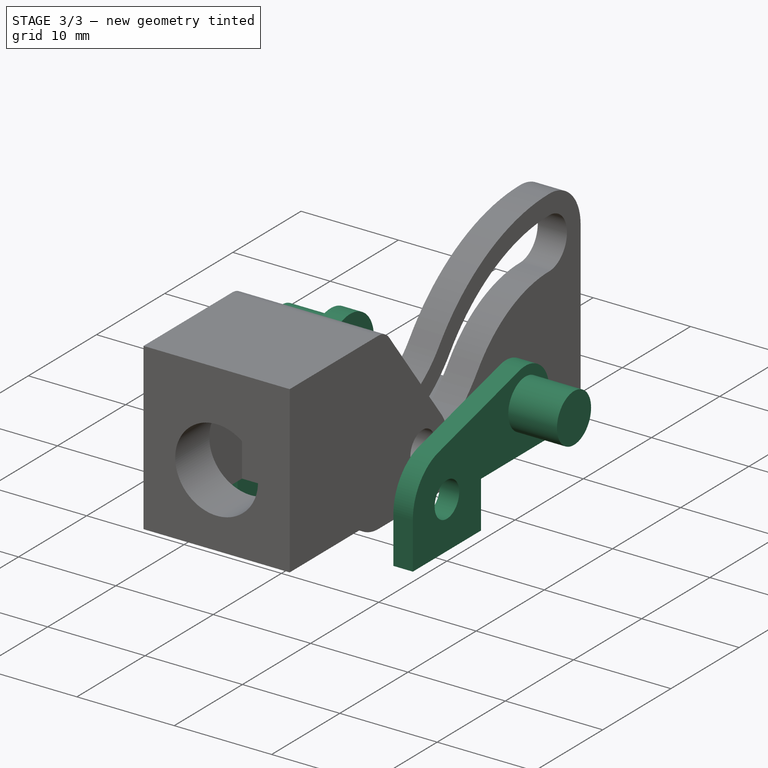
[diagram: stage 3 of 3 — iso view after this stage's code; geometry added in this stage tinted green]
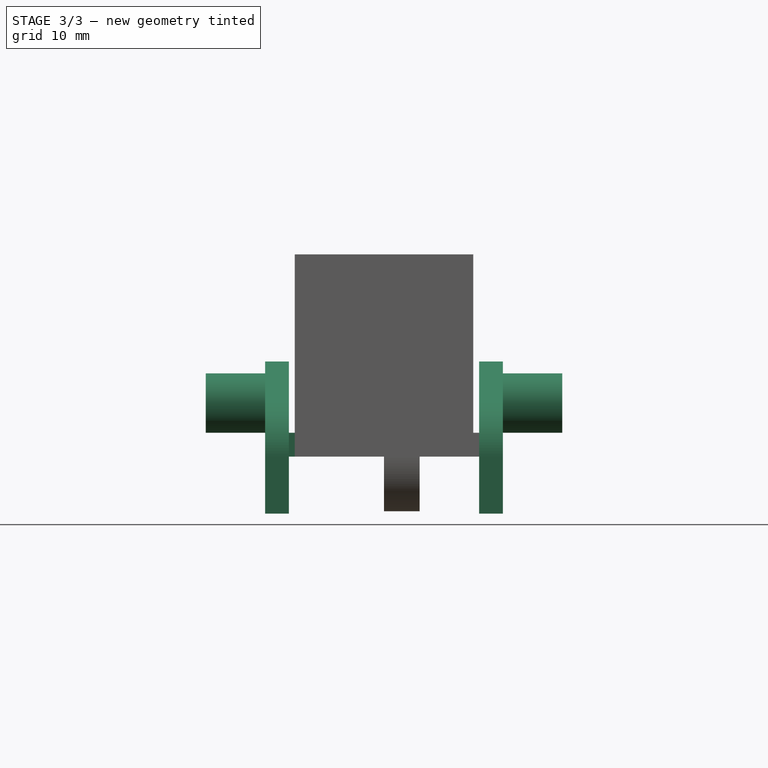
[diagram: stage 3 of 3 — front view after this stage's code; geometry added in this stage tinted green]
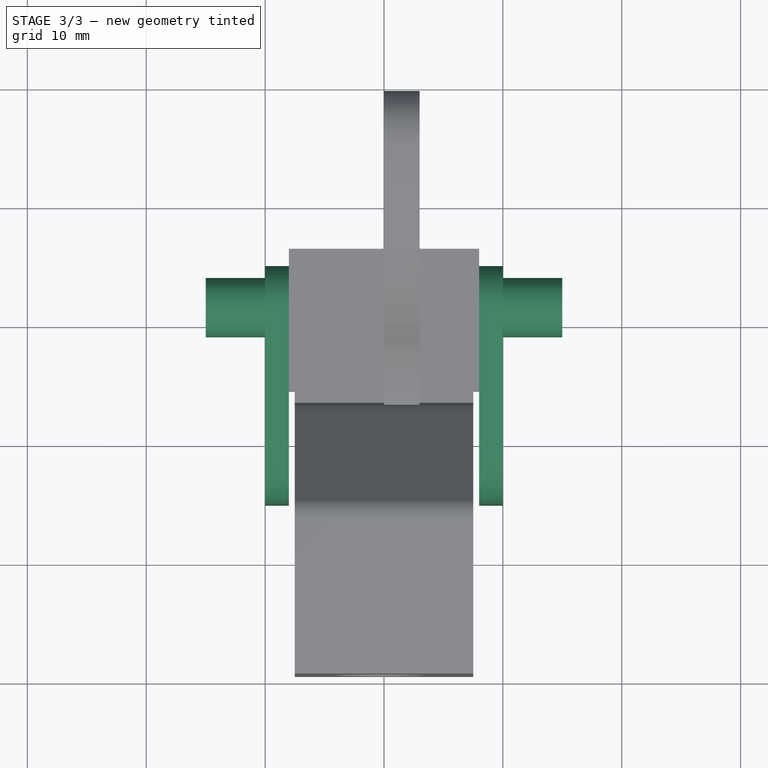
[diagram: stage 3 of 3 — top view after this stage's code; geometry added in this stage tinted green]
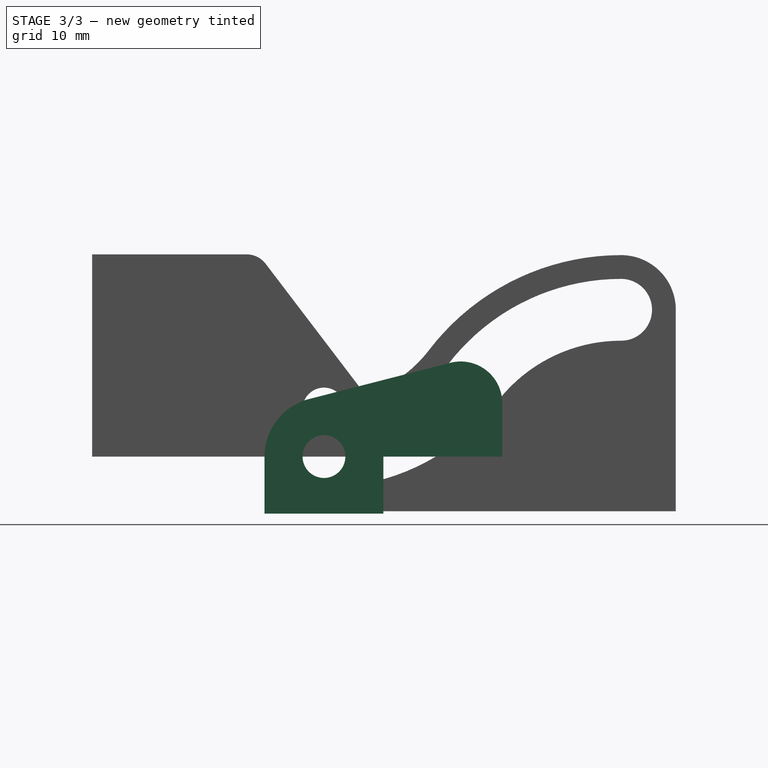
[diagram: stage 3 of 3 — right view after this stage's code; geometry added in this stage tinted green]
FEATURE [PartDesign::Pad] Pad002
  BaseFeature = -> Pad001
  Direction = (1,1,1)
  Length = 2
  Length2 = 100
  Placement = pos=(0,0,0) rot=(0.57735,0.57735,0.57735;2.0944rad)
  Profile = -> Sketch001
  Type = 0
FEATURE [Sketcher::SketchObject] Sketch003
  AttachmentOffset = pos=(0,0,10) rot=(0,0,1;0rad)
  FullyConstrained = true
  MapMode = 5
  Placement = pos=(10,-2.2e-15,2.2e-15) rot=(0.57735,0.57735,0.57735;2.0944rad)
  Support = -> [YZ_Plane001]
  expr: Constraints[37] = Sketch001.Constraints[37]
  expr: Constraints[26] = Sketch001.Constraints[26]
  expr: Constraints[27] = Sketch001.Constraints[27]
  expr: Constraints[22] = Sketch001.Constraints[22]
  expr: Constraints[28] = Sketch001.Constraints[28]
  expr: Constraints[21] = Sketch001.Constraints[21]
  expr: Constraints[20] = Sketch001.Constraints[20]
  expr: Constraints[19] = Sketch001.Constraints[19]
  expr: Constraints[12] = Sketch001.Constraints[12]
  sketch-geometry (14):
    g0: Circle CenterX=0 CenterY=0 CenterZ=0 NormalX=0 NormalY=0 NormalZ=1 AngleXU=0 Radius=1.8
    g1: LineSegment StartX=-5 StartY=-4.8 StartZ=0 EndX=5 EndY=-4.8 EndZ=0
    g2: LineSegment StartX=5 StartY=-4.8 StartZ=0 EndX=5 EndY=0 EndZ=0
    g3: LineSegment StartX=5 StartY=0 StartZ=0 EndX=15 EndY=0 EndZ=0
    g4: LineSegment StartX=15 StartY=0 StartZ=0 EndX=15 EndY=2 EndZ=0
    g5: LineSegment StartX=-5 StartY=-4.8 StartZ=0 EndX=-5 EndY=2.87421e-08 EndZ=0
    g6: GeomPoint X=0 Y=10 Z=0
    g7: LineSegment StartX=0 StartY=0 StartZ=0 EndX=-5 EndY=0 EndZ=0
    g8: LineSegment StartX=0 StartY=0 StartZ=0 EndX=5 EndY=0 EndZ=0
    g9: ArcOfCircle CenterX=0 CenterY=0 CenterZ=0 NormalX=0 NormalY=0 NormalZ=1 AngleXU=0 Radius=5 StartAngle=1.82202 EndAngle=3.14159
    g10: Circle CenterX=11.5 CenterY=4.5 CenterZ=0 NormalX=0 NormalY=0 NormalZ=1 AngleXU=0 Radius=2.5
    g11: ArcOfCircle CenterX=11.5 CenterY=4.5 CenterZ=0 NormalX=0 NormalY=0 NormalZ=1 AngleXU=0 Radius=3.5 StartAngle=6.28318 EndAngle=8.10521
    g12: LineSegment StartX=15 StartY=2 StartZ=0 EndX=15 EndY=4.49999 EndZ=0
    g13: LineSegment StartX=10.6299 StartY=7.89013 StartZ=0 EndX=-1.24293 EndY=4.84305 EndZ=0
  constraints (39):
    c: Coincident(g0,g-1)
    c: Horizontal(g1)
    c: Coincident(g2,g1)
    c: PointOnObject(g2,g-1)
    c: Vertical(g2)
    c: Coincident(g3,g2)
    c: PointOnObject(g3,g-1)
    c: Coincident(g4,g3)
    c: Vertical(g4)
    c: Coincident(g5,g1)
    c: Vertical(g5)
    c: PointOnObject(g6,g-2)
    c: Diameter(g0) = 3.6
    c: Coincident(g7,g0)
    c: PointOnObject(g7,g-1)
    c: Coincident(g8,g0)
    c: Coincident(g8,g2)
    c: Equal(g7,g8)
    c: PointOnObject(g7,g5)
    c: DistanceY(g1) = -4.8
    c: Distance(g4) = 2
    c: Distance(g0,g6) = 10
    c: Distance(g7,g2) = 10
    c: Coincident(g9,g0)
    c: Coincident(g9,g5)
    c: Tangent(g9,g5)
    c: Distance(g3) = 10
    c: Diameter(g10) = 5
    c: DistanceY(g10) = 4.5
    c: Coincident(g11,g10)
    c: Coincident(g12,g4)
    c: Coincident(g12,g11)
    c: Vertical(g12)
    c: Coincident(g13,g11)
    c: Coincident(g13,g9)
    c: Tangent(g11,g13)
    c: Tangent(g13,g9)
    c: Distance(g11,g11) = 3.5
    c: Tangent(g12,g11)
FEATURE [PartDesign::Pad] Pad003
  BaseFeature = -> Pad002
  Direction = (1,1,1)
  Length = 5
  Length2 = 100
  Placement = pos=(0,0,0) rot=(0.57735,0.57735,0.57735;2.0944rad)
  Profile = -> Sketch003
  Type = 0
FEATURE [PartDesign::Mirrored] Mirrored
  BaseFeature = -> Pad003
  MirrorPlane = -> YZ_Plane001
  Originals = -> [Pad001,Pad002,Pad003]
  Placement = pos=(0,0,0) rot=(0.57735,0.57735,0.57735;2.0944rad)
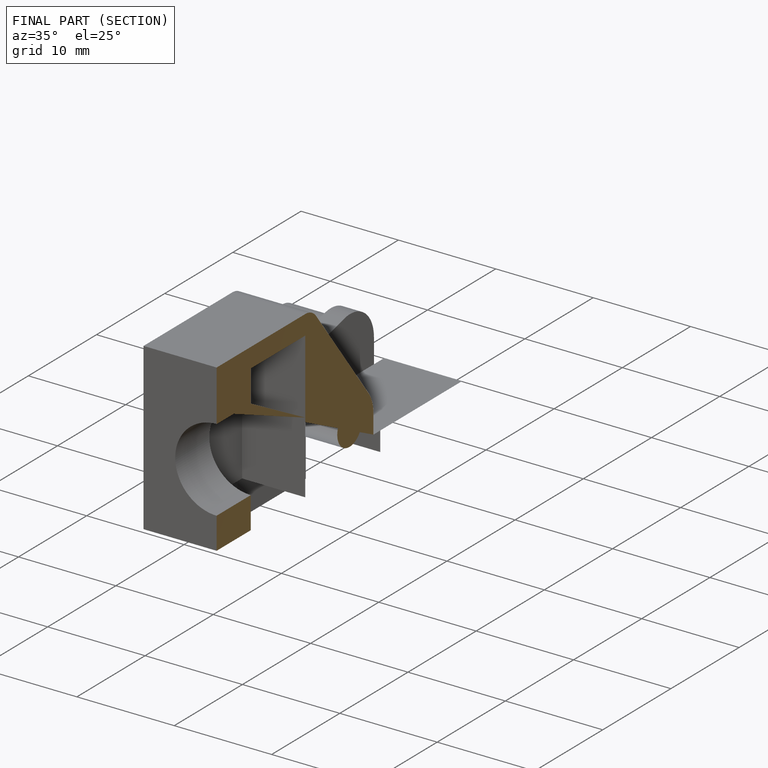
[diagram: finished part — half-section view (interior)]
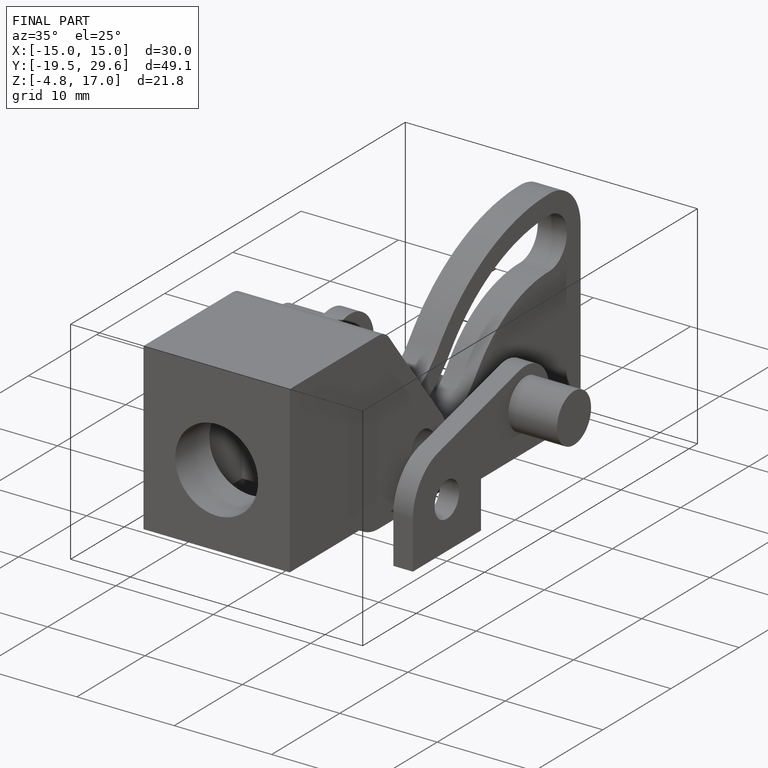
[diagram: finished part — iso view with bounding-box wireframe]
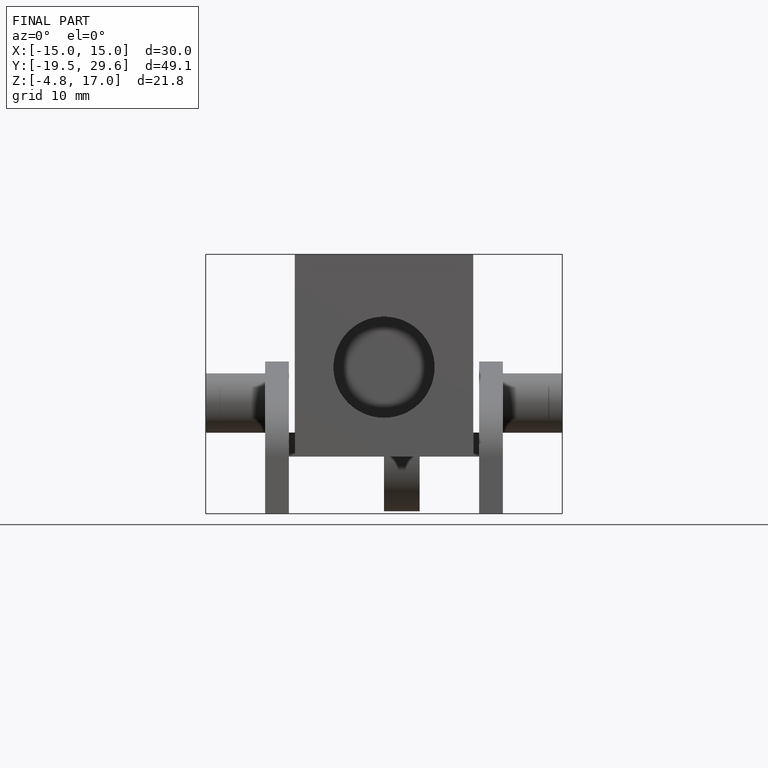
[diagram: finished part — front view with bounding-box wireframe]
